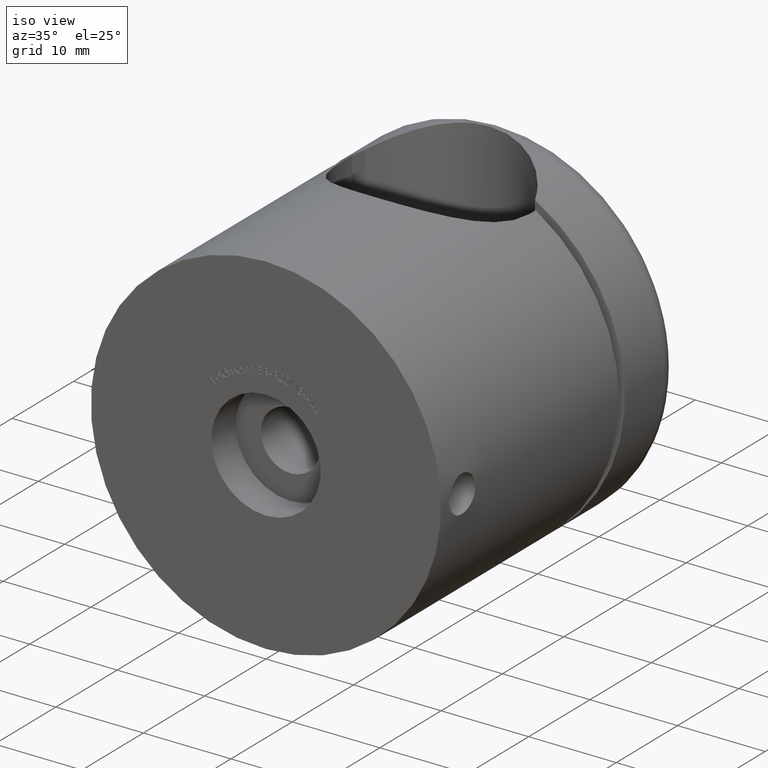
[diagram: clean part render]
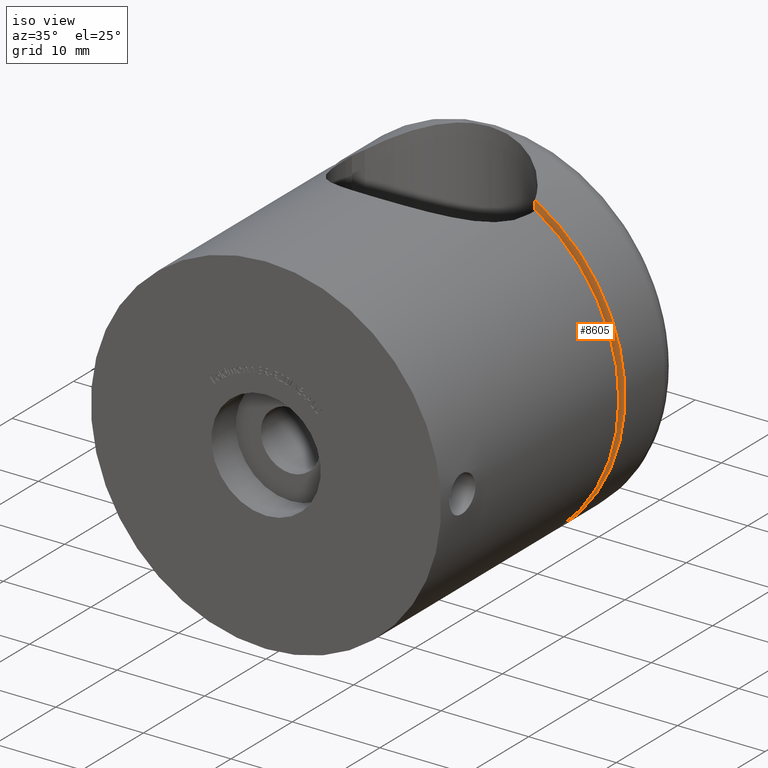
[diagram: same view with one face highlighted and labeled with its STEP entity id]
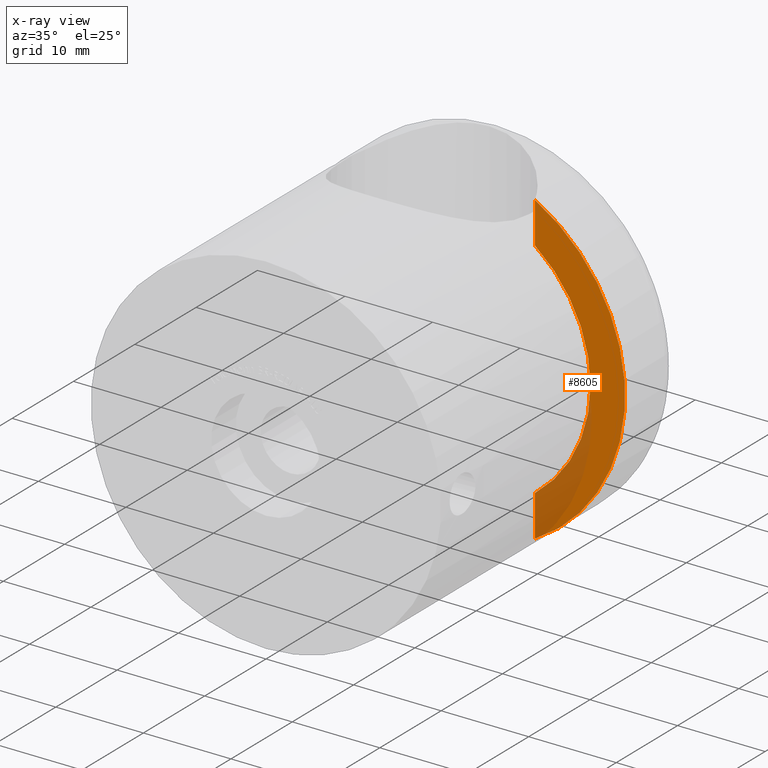
[diagram: x-ray of the same camera — body ghosted, the highlighted face saturated]
A machine part, iso view. The second image highlights one B-rep face of the part: STEP entity #8605.
The next image is the same camera in x-ray: the body ghosted, the highlighted face saturated — about 21% of this face is hidden behind the body in this view.
In plain terms, the highlighted planar face has unit normal (0, -1, 0).
Its self-contained STEP definition (entity closure, byte-faithful):
#210 = DIRECTION ( 'NONE',  ( 0.000000000000000000, 1.000000000000000000, 0.000000000000000000 ) ) ;
#1007 = CARTESIAN_POINT ( 'NONE',  ( 0.000000000000000000, 10.00000000000000000, 0.000000000000000000 ) ) ;
#1108 = AXIS2_PLACEMENT_3D ( 'NONE', #6012, #8534, #2224 ) ;
#2224 = DIRECTION ( 'NONE',  ( 0.000000000000000000, -0.000000000000000000, 1.000000000000000000 ) ) ;
#2747 = DIRECTION ( 'NONE',  ( 0.000000000000000000, 0.000000000000000000, 1.000000000000000000 ) ) ;
#3112 = EDGE_LOOP ( 'NONE', ( #15247, #13531, #13117, #9333 ) ) ;
#3496 = VECTOR ( 'NONE', #14444, 1000.000000000000000 ) ;
#3847 = LINE ( 'NONE', #6021, #11856 ) ;
#4264 = EDGE_CURVE ( 'NONE', #7839, #7383, #11118, .T. ) ;
#4738 = AXIS2_PLACEMENT_3D ( 'NONE', #6361, #210, #2747 ) ;
#4823 = EDGE_CURVE ( 'NONE', #7839, #14869, #5867, .T. ) ;
#5033 = CIRCLE ( 'NONE', #4738, 16.05000000000000071 ) ;
#5480 = CARTESIAN_POINT ( 'NONE',  ( 9.708243919473801498, 10.00000000000000000, -20.00000000000000000 ) ) ;
#5867 = LINE ( 'NONE', #5480, #3496 ) ;
#6012 = CARTESIAN_POINT ( 'NONE',  ( 0.000000000000000000, 10.00000000000000000, 0.000000000000000000 ) ) ;
#6021 = CARTESIAN_POINT ( 'NONE',  ( 9.708243919473801498, 10.00000000000000000, -20.00000000000000000 ) ) ;
#6361 = CARTESIAN_POINT ( 'NONE',  ( 0.000000000000000000, 10.00000000000000000, 0.000000000000000000 ) ) ;
#6997 = EDGE_CURVE ( 'NONE', #14869, #8550, #5033, .T. ) ;
#7290 = EDGE_CURVE ( 'NONE', #8550, #7383, #3847, .T. ) ;
#7383 = VERTEX_POINT ( 'NONE', #11079 ) ;
#7465 = PLANE ( 'NONE',  #1108 ) ;
#7610 = FACE_OUTER_BOUND ( 'NONE', #3112, .T. ) ;
#7839 = VERTEX_POINT ( 'NONE', #8697 ) ;
#8534 = DIRECTION ( 'NONE',  ( 0.000000000000000000, 1.000000000000000000, 0.000000000000000000 ) ) ;
#8550 = VERTEX_POINT ( 'NONE', #13472 ) ;
#8605 = ADVANCED_FACE ( 'NONE', ( #7610 ), #7465, .T. ) ;
#8697 = CARTESIAN_POINT ( 'NONE',  ( 9.708243919473801498, 10.00000000000000000, 17.48570845004571339 ) ) ;
#9333 = ORIENTED_EDGE ( 'NONE', *, *, #6997, .F. ) ;
#11079 = CARTESIAN_POINT ( 'NONE',  ( 9.708243919473801498, 10.00000000000000000, -17.48570845004571339 ) ) ;
#11118 = CIRCLE ( 'NONE', #12487, 20.00000000000000000 ) ;
#11190 = DIRECTION ( 'NONE',  ( 0.000000000000000000, 0.000000000000000000, -1.000000000000000000 ) ) ;
#11856 = VECTOR ( 'NONE', #11190, 1000.000000000000000 ) ;
#12418 = DIRECTION ( 'NONE',  ( 0.000000000000000000, 1.000000000000000000, 0.000000000000000000 ) ) ;
#12487 = AXIS2_PLACEMENT_3D ( 'NONE', #1007, #12418, #13665 ) ;
#13117 = ORIENTED_EDGE ( 'NONE', *, *, #7290, .F. ) ;
#13289 = CARTESIAN_POINT ( 'NONE',  ( 9.708243919473801498, 10.00000000000000000, 12.78094284472002684 ) ) ;
#13472 = CARTESIAN_POINT ( 'NONE',  ( 9.708243919473801498, 10.00000000000000000, -12.78094284472002684 ) ) ;
#13531 = ORIENTED_EDGE ( 'NONE', *, *, #4264, .T. ) ;
#13665 = DIRECTION ( 'NONE',  ( 0.000000000000000000, 0.000000000000000000, 1.000000000000000000 ) ) ;
#14444 = DIRECTION ( 'NONE',  ( 0.000000000000000000, 0.000000000000000000, -1.000000000000000000 ) ) ;
#14869 = VERTEX_POINT ( 'NONE', #13289 ) ;
#15247 = ORIENTED_EDGE ( 'NONE', *, *, #4823, .F. ) ;